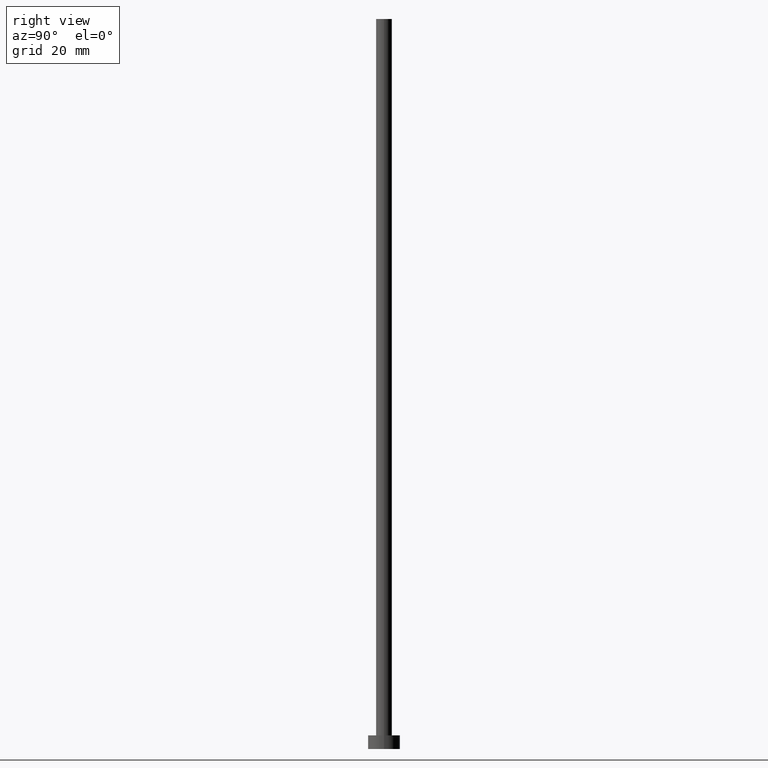
[diagram: clean part render]
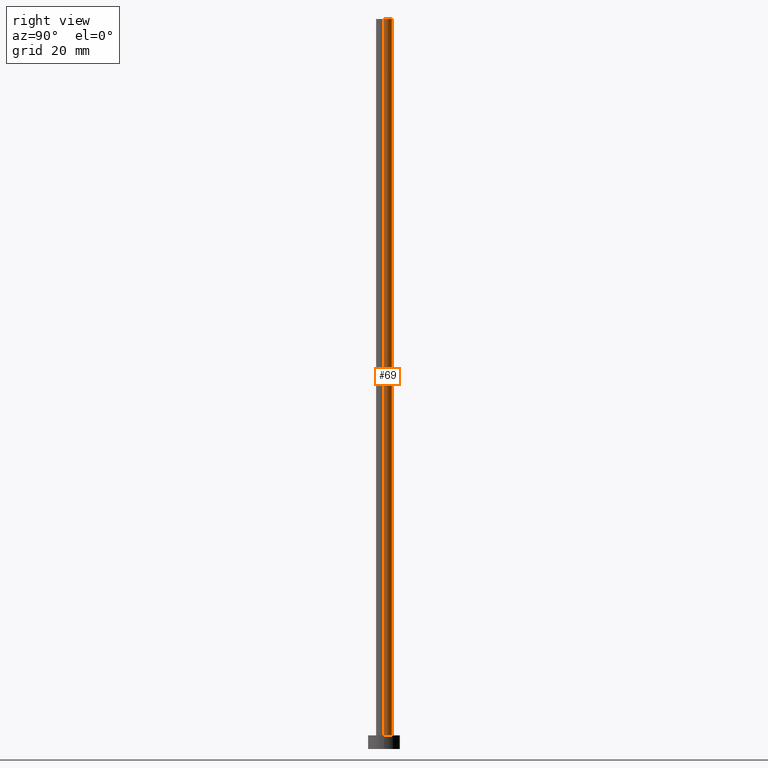
[diagram: same view with one face highlighted and labeled with its STEP entity id]
A machine part, right view. The second image highlights one B-rep face of the part: STEP entity #69.
In plain terms, the highlighted cylindrical surface (edge-blend (fillet) strip) has radius 1.75 mm, axis along (-0, -0, -1).
Its self-contained STEP definition (entity closure, byte-faithful):
#8 = DIRECTION ( 'NONE',  ( -0.000000000000000000, -0.000000000000000000, -1.000000000000000000 ) ) ;
#9 = FACE_OUTER_BOUND ( 'NONE', #250, .T. ) ;
#24 = VERTEX_POINT ( 'NONE', #84 ) ;
#42 = CARTESIAN_POINT ( 'NONE',  ( 0.000000000000000000, 0.000000000000000000, 160.0000000000000000 ) ) ;
#51 = CARTESIAN_POINT ( 'NONE',  ( 1.750000000000000000, 2.143131898507868297E-16, 3.000000000000000000 ) ) ;
#53 = DIRECTION ( 'NONE',  ( -0.000000000000000000, -0.000000000000000000, -1.000000000000000000 ) ) ;
#62 = AXIS2_PLACEMENT_3D ( 'NONE', #42, #173, #151 ) ;
#68 = DIRECTION ( 'NONE',  ( -1.000000000000000000, 0.000000000000000000, 0.000000000000000000 ) ) ;
#69 = ADVANCED_FACE ( 'NONE', ( #9 ), #157, .T. ) ;
#70 = CIRCLE ( 'NONE', #201, 1.750000000000000000 ) ;
#77 = VECTOR ( 'NONE', #53, 1000.000000000000000 ) ;
#84 = CARTESIAN_POINT ( 'NONE',  ( -1.750000000000000000, 0.000000000000000000, 160.0000000000000000 ) ) ;
#103 = CARTESIAN_POINT ( 'NONE',  ( -1.750000000000000000, 0.000000000000000000, 3.000000000000000000 ) ) ;
#107 = ORIENTED_EDGE ( 'NONE', *, *, #158, .T. ) ;
#109 = VERTEX_POINT ( 'NONE', #51 ) ;
#115 = DIRECTION ( 'NONE',  ( 1.000000000000000000, 0.000000000000000000, 0.000000000000000000 ) ) ;
#121 = AXIS2_PLACEMENT_3D ( 'NONE', #136, #226, #68 ) ;
#125 = LINE ( 'NONE', #192, #77 ) ;
#134 = VERTEX_POINT ( 'NONE', #103 ) ;
#135 = DIRECTION ( 'NONE',  ( 0.000000000000000000, 0.000000000000000000, 1.000000000000000000 ) ) ;
#136 = CARTESIAN_POINT ( 'NONE',  ( 0.000000000000000000, 0.000000000000000000, 160.0000000000000000 ) ) ;
#137 = CARTESIAN_POINT ( 'NONE',  ( 0.000000000000000000, 0.000000000000000000, 3.000000000000000000 ) ) ;
#148 = CARTESIAN_POINT ( 'NONE',  ( -1.750000000000000000, 0.000000000000000000, 160.0000000000000000 ) ) ;
#150 = CIRCLE ( 'NONE', #62, 1.750000000000000000 ) ;
#151 = DIRECTION ( 'NONE',  ( 1.000000000000000000, 0.000000000000000000, 0.000000000000000000 ) ) ;
#157 = CYLINDRICAL_SURFACE ( 'NONE', #121, 1.750000000000000000 ) ;
#158 = EDGE_CURVE ( 'NONE', #199, #109, #125, .T. ) ;
#164 = ORIENTED_EDGE ( 'NONE', *, *, #227, .F. ) ;
#173 = DIRECTION ( 'NONE',  ( 0.000000000000000000, 0.000000000000000000, 1.000000000000000000 ) ) ;
#178 = VECTOR ( 'NONE', #8, 1000.000000000000000 ) ;
#192 = CARTESIAN_POINT ( 'NONE',  ( 1.750000000000000000, 2.143131898507868297E-16, 160.0000000000000000 ) ) ;
#198 = LINE ( 'NONE', #148, #178 ) ;
#199 = VERTEX_POINT ( 'NONE', #216 ) ;
#201 = AXIS2_PLACEMENT_3D ( 'NONE', #137, #135, #115 ) ;
#216 = CARTESIAN_POINT ( 'NONE',  ( 1.750000000000000000, 2.143131898507868297E-16, 160.0000000000000000 ) ) ;
#222 = ORIENTED_EDGE ( 'NONE', *, *, #247, .T. ) ;
#226 = DIRECTION ( 'NONE',  ( -0.000000000000000000, -0.000000000000000000, -1.000000000000000000 ) ) ;
#227 = EDGE_CURVE ( 'NONE', #24, #134, #198, .T. ) ;
#244 = EDGE_CURVE ( 'NONE', #199, #24, #150, .T. ) ;
#247 = EDGE_CURVE ( 'NONE', #109, #134, #70, .T. ) ;
#250 = EDGE_LOOP ( 'NONE', ( #253, #107, #222, #164 ) ) ;
#253 = ORIENTED_EDGE ( 'NONE', *, *, #244, .F. ) ;